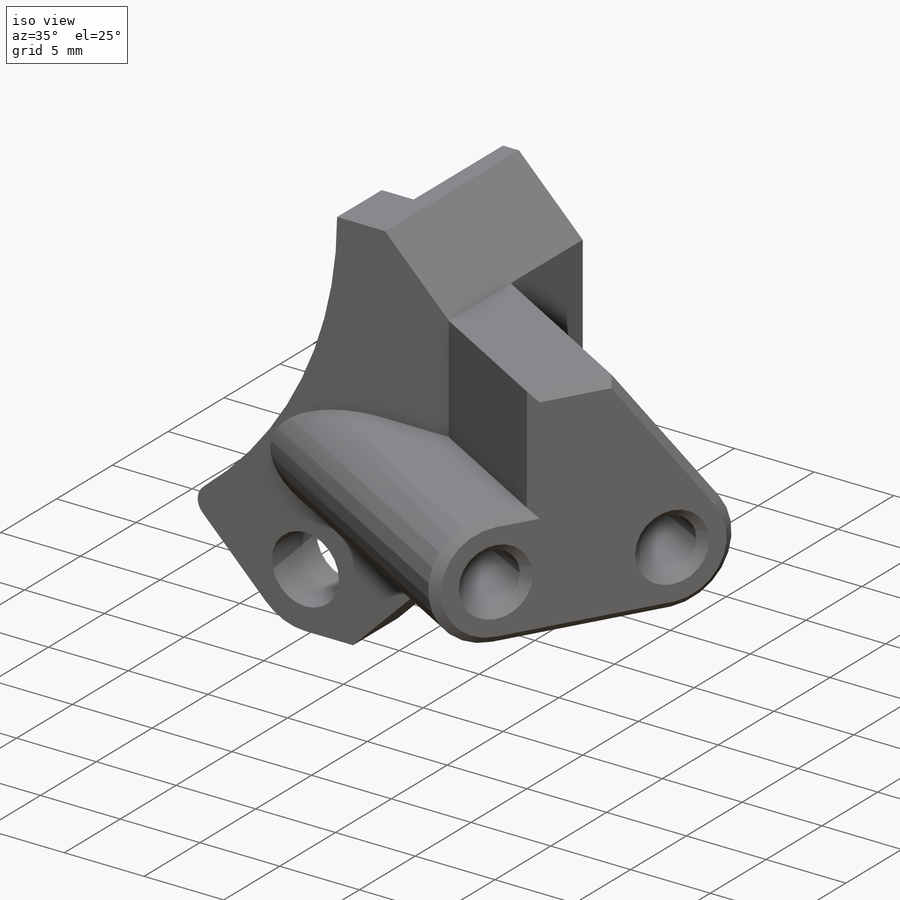
[diagram: iso view]
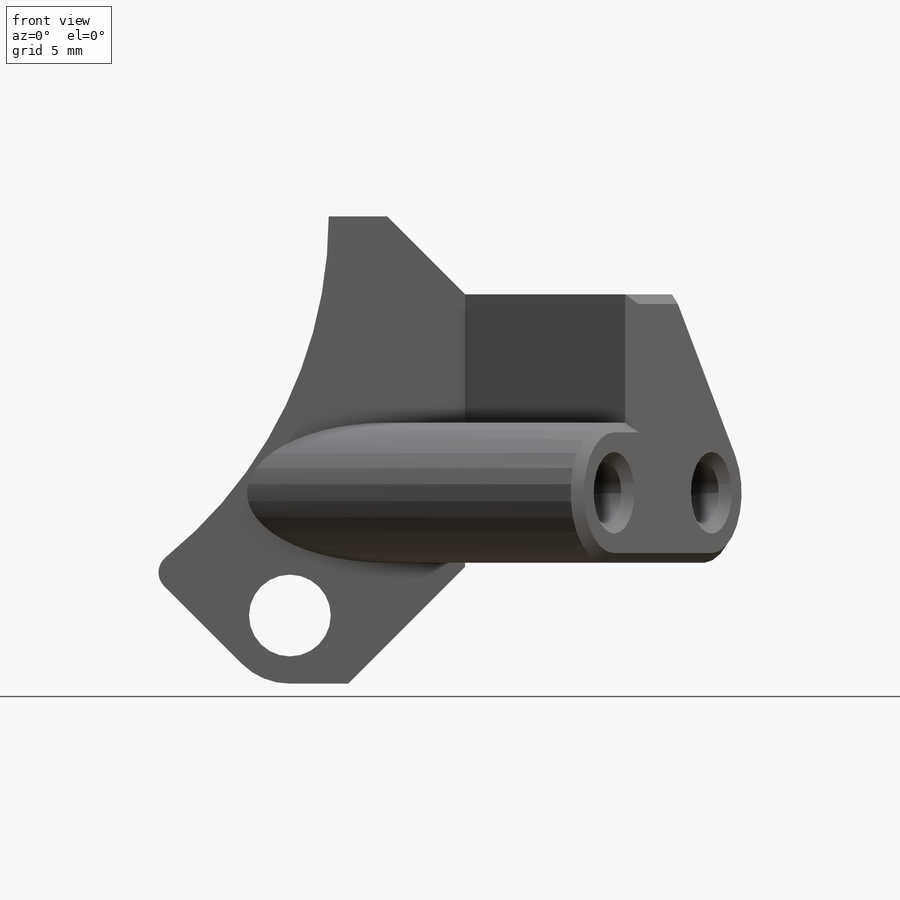
[diagram: front view]
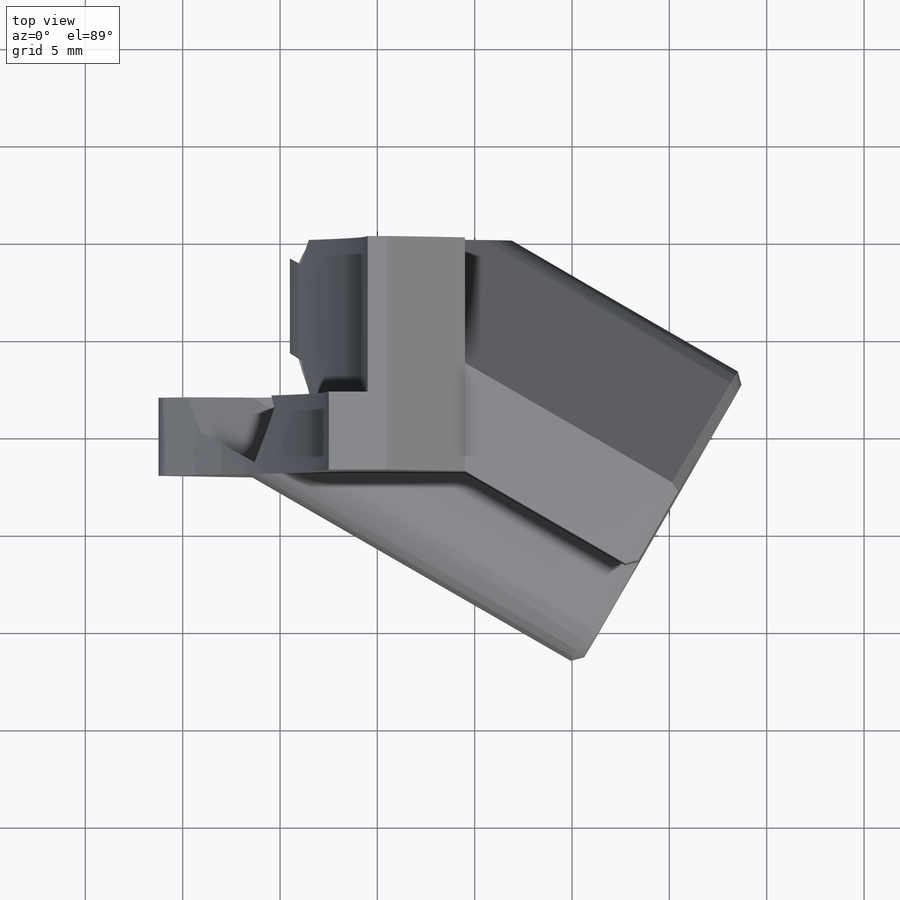
[diagram: top view]
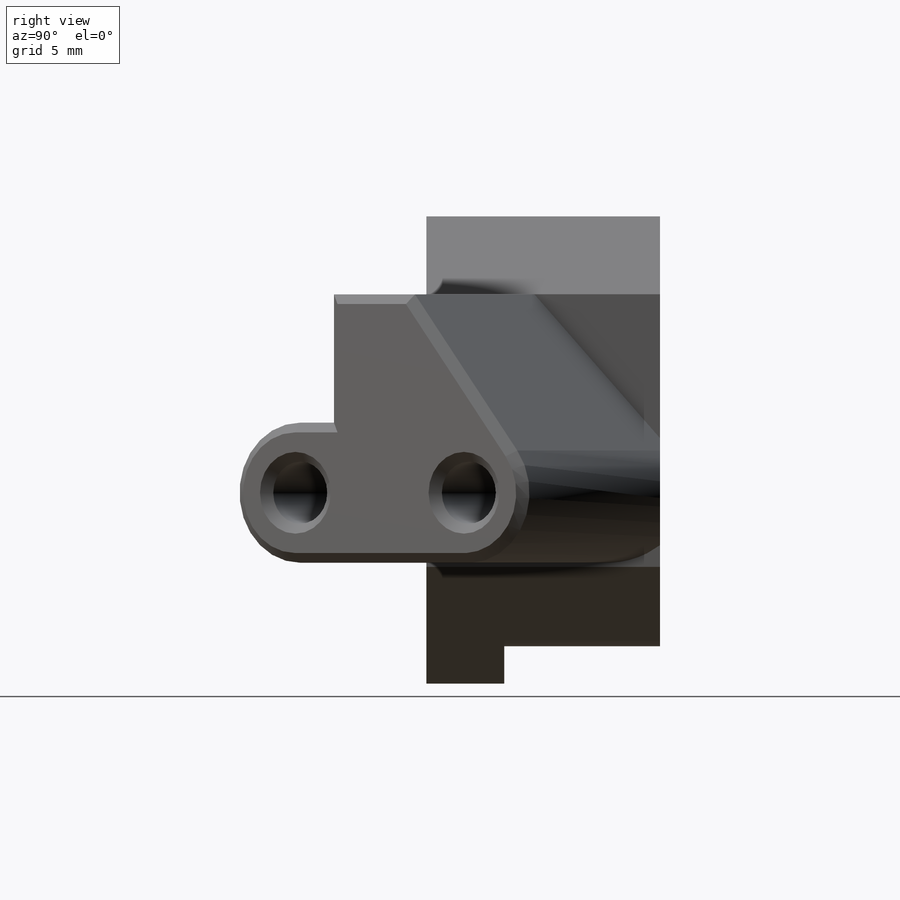
[diagram: right view]
SOLIDWORKS PART (.sldprt)
format: sldprt  version: not decoded by parser v0  size: 379,904 bytes
history: native  units: mm
features: sketch x7, cut_extrude x4, extrude x3, chamfer x3, fillet x2, material x1 (+13 scaffold rows collapsed)
feature tree (33):
  scaffold x13  (default folders/planes/origin — collapsed)
  material  "Material <not specified>"
  sketch  "Sketch1"  dims[c1.D1=49.0mm c1.D3=4.2mm c1.D5=7.0mm c1.D9=~2.326613mm c1.D6=24.5mm c2.D1=4.2mm c2.D3=49.0mm c2.D5=49.0mm c2.D7=3.5mm c2.D2=58.0mm c2.D4=58.0mm c3.D4=45.0deg c3.D6=51.0mm c3.D7=51.0mm c3.D8=20.0mm c4.D6=54.0mm c4.D7=~5.993903mm c4.D5=2.0mm]
  extrude  "Boss-Extrude1"  Depth=12mm
  sketch  "Sketch2"  dims[c1.D1=15.0mm c2.D1=30.0deg c2.D2=10.0mm]
  extrude  "Boss-Extrude2"  Depth=13.79mm
  sketch  "Sketch3"  dims[D1=2.0mm]
  cut_extrude  "Cut-Extrude1"  Depth=4mm
  sketch  "Sketch5"  dims[c1.D1=~2.989709mm c1.D3=~3.112311mm c2.D1=2.0mm c2.D2=14.2mm c2.D3=4.09mm c3.D2=2.0mm]
  extrude  "Boss-Extrude3"  [1 undecoded]
  sketch  "Sketch4"  dims[c1.D4=3.2mm c1.D1=10.0mm c1.D2=4.0mm c1.D3=30.7mm c2.D2=14.2mm c2.D3=8.0mm]
  cut_extrude  "Cut-Extrude2"  [1 undecoded]
  chamfer  "Chamfer2"  Distance=4mm Angle=45deg
  sketch  "Sketch7"  dims[c1.D2=7.2mm c1.D1=~11.547005mm c2.D1=127.09deg]
  cut_extrude  "Cut-Extrude3"  [1 undecoded]
  chamfer  "Chamfer3"  Distance=6mm Angle=45deg
  sketch  "Sketch8"  dims[D1=5.8mm]
  cut_extrude  "Cut-Extrude4"  Depth=12.5mm
  fillet  "Fillet1"  Radius=1mm
  chamfer  "Chamfer4"  Distance=0.5mm Angle=45deg
  fillet  "Fillet2"  Radius=3mm
decode coverage: 16 of 19 modeling features carry decoded parameters
note: ~ marks probable driven/reference dimensions
note: 3 parameter values undecoded
summary: no parameter record found for 3 features
note: suppression state not decoded; provenance and decode notes live in map.json
